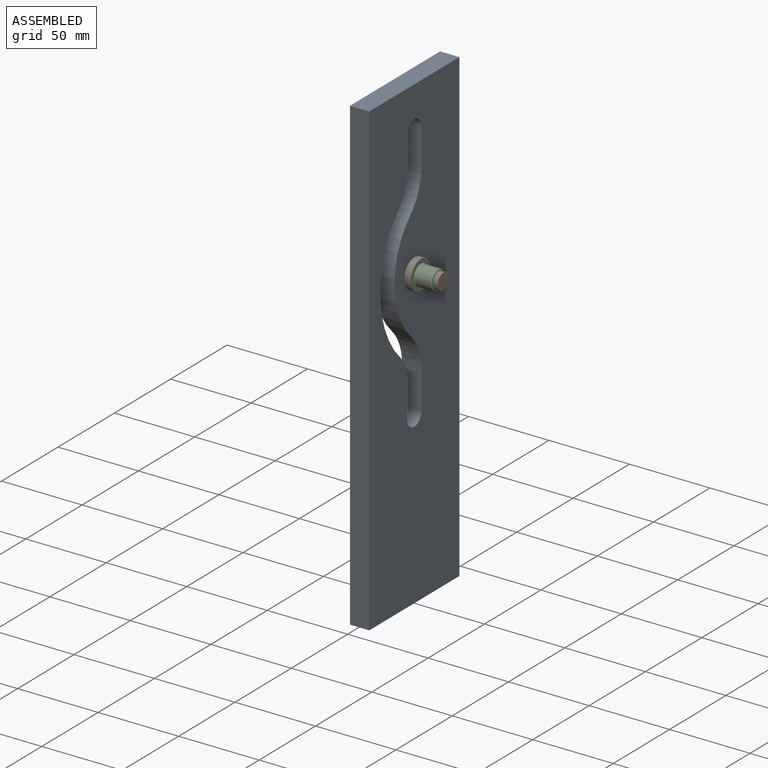
[diagram: assembled view]
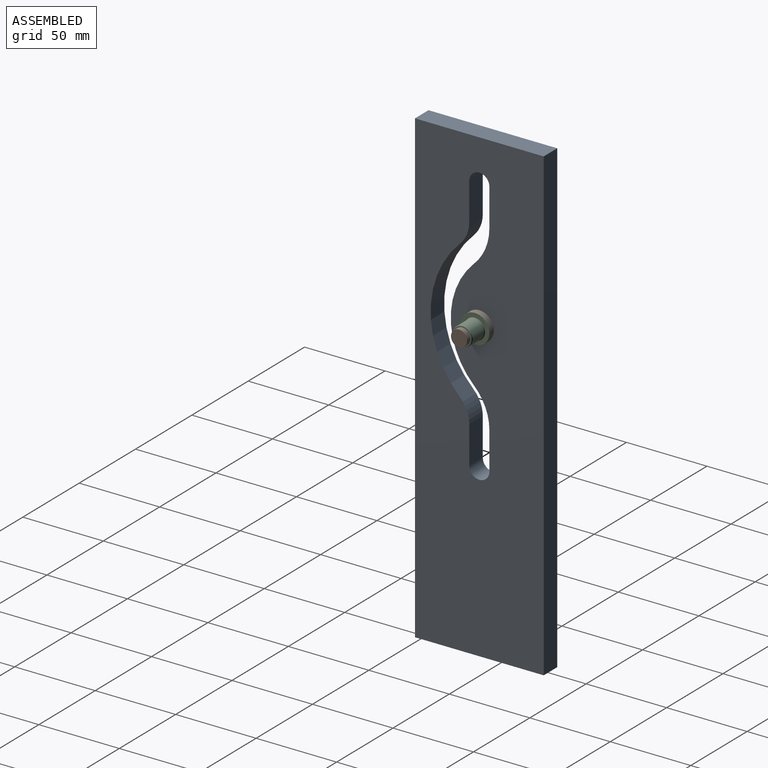
[diagram: assembled view, second angle]
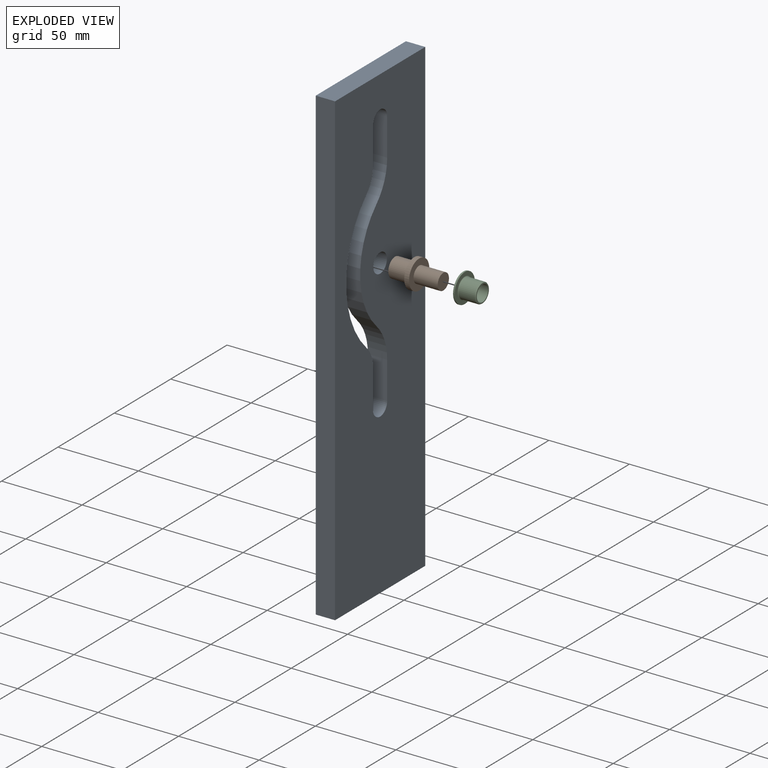
[diagram: exploded view]
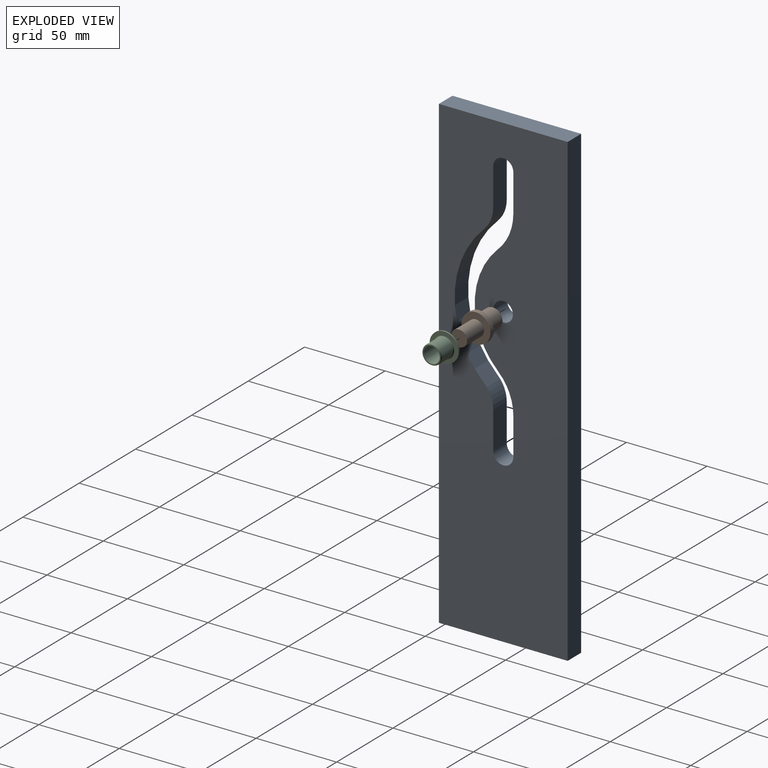
[diagram: exploded view, second angle]
ASSEMBLY  parts=3 mates=2
PART A: 19 faces, bbox 12x80x291.4 mm
  f0: plane 291.38x12mm, normal (0,-1,0), area 3496.6mm2, adj f1,f14,f17,f18
  f1: plane 80x12mm, normal (0,0,-1), area 960mm2, adj f0,f2,f17,f18
  f2: plane 291.38x12mm, normal (0,1,0), area 3496.6mm2, adj f1,f14,f17,f18
  f3: cylinder r=6.25mm len=12.5mm, axis (-1,0,0), area 235.6mm2, adj f4,f15,f17,f18
  f4: plane 23.29x12mm, normal (0,-1,0), area 279.5mm2, adj f3,f5,f17,f18
  f5: cylinder r=31.25mm len=22.43mm, axis (-1,0,0), area 300.3mm2, adj f4,f6,f17,f18
  f6: cylinder r=47.75mm len=68.55mm, axis (-1,0,0), area 917.6mm2, adj f5,f7,f17,f18
  f7: cylinder r=31.25mm len=22.43mm, axis (-1,0,0), area 300.3mm2, adj f6,f8,f17,f18
  f8: plane 23.29x12mm, normal (0,-1,0), area 279.5mm2, adj f7,f9,f17,f18
  f9: cylinder r=6.25mm len=12.5mm, axis (-1,0,0), area 235.6mm2, adj f8,f10,f17,f18
  f10: plane 23.29x12mm, normal (0,1,0), area 279.5mm2, adj f9,f11,f17,f18
  f11: cylinder r=18.75mm len=13.46mm, axis (-1,0,0), area 180.2mm2, adj f10,f12,f17,f18
  f12: cylinder r=60.25mm len=86.5mm, axis (-1,0,0), area 1157.8mm2, adj f11,f13,f17,f18
  f13: cylinder r=18.75mm len=13.46mm, axis (-1,0,0), area 180.2mm2, adj f12,f15,f17,f18
  f14: plane 80x12mm, normal (0,0,1), area 960mm2, adj f0,f2,f17,f18
  f15: plane 23.29x12mm, normal (0,1,0), area 279.5mm2, adj f3,f13,f17,f18
  f16: cylinder r=6mm len=12mm, axis (-1,0,0), area 452.4mm2, adj f17,f18
  f17: plane 291.38x80mm, normal (1,0,0), area 20910.9mm2, adj f0,f1,f2,f3,f4,f5,f6,f7
  f18: plane 291.38x80mm, normal (-1,0,0), area 20910.9mm2, adj f0,f1,f2,f3,f4,f5,f6,f7
PART B: 7 faces, bbox 18x18x30 mm
  f0: cylinder r=5mm len=15mm, axis (0,0,-1), area 471.2mm2, adj f1,f2
  f1: plane 10x10mm, normal (0,0,1), area 78.5mm2, adj f0
  f2: plane 18x18mm, normal (0,0,1), area 175.9mm2, adj f0,f3
  f3: cylinder r=9mm len=18mm, axis (0,0,1), area 169.6mm2, adj f2,f4
  f4: plane 18x18mm, normal (0,0,-1), area 141.4mm2, adj f3,f6
  f5: plane 12x12mm, normal (0,0,-1), area 113.1mm2, adj f6
  f6: cylinder r=6mm len=12mm, axis (0,0,1), area 452.4mm2, adj f4,f5
PART C: 8 faces, bbox 18x18x12 mm
  f0: cylinder r=5mm len=12mm, axis (0,0,1), area 377mm2, adj f6,f7
  f1: cone r=5.86mm half-angle=30deg, axis (0,0,-1), area 21.2mm2, adj f2,f6
  f2: cylinder r=6mm len=12mm, axis (0,0,1), area 377mm2, adj f1,f3
  f3: torus R=6.5mm, axis (0,0,1), area 30.5mm2, adj f2,f5
  f4: cylinder r=9mm len=18mm, axis (0,0,1), area 56.5mm2, adj f5,f7
  f5: plane 18x18mm, normal (0,0,1), area 121.7mm2, adj f3,f4
  f6: plane 11.42x11.42mm, normal (0,0,1), area 23.9mm2, adj f0,f1
  f7: plane 18x18mm, normal (0,0,-1), area 175.9mm2, adj f0,f4
PLACE A at identity
PLACE B rot(axis=(0,1,0),90deg) t=(15,-57.93,0)mm
PLACE C rot(axis=(-0.58,0.58,-0.58),120deg) t=(15,-57.93,0)mm
MATE fastened A.f16 <-> B.f6  axis (-1,0,0) through (0,-57.93,0)mm
MATE fastened C.f0 <-> B.f3  axis (1,0,0) through (15,-57.93,0)mm
